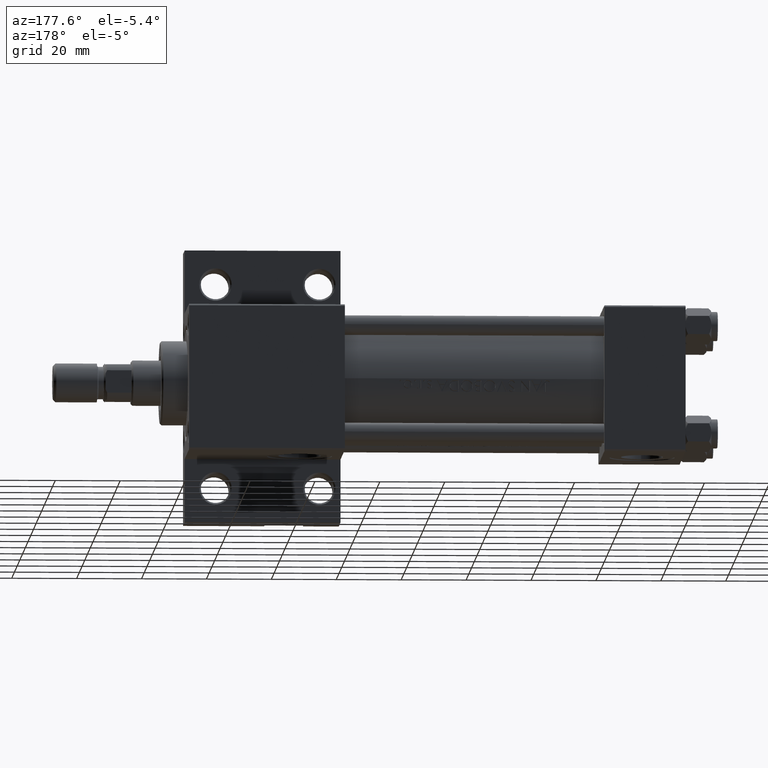
[diagram: clean part render]
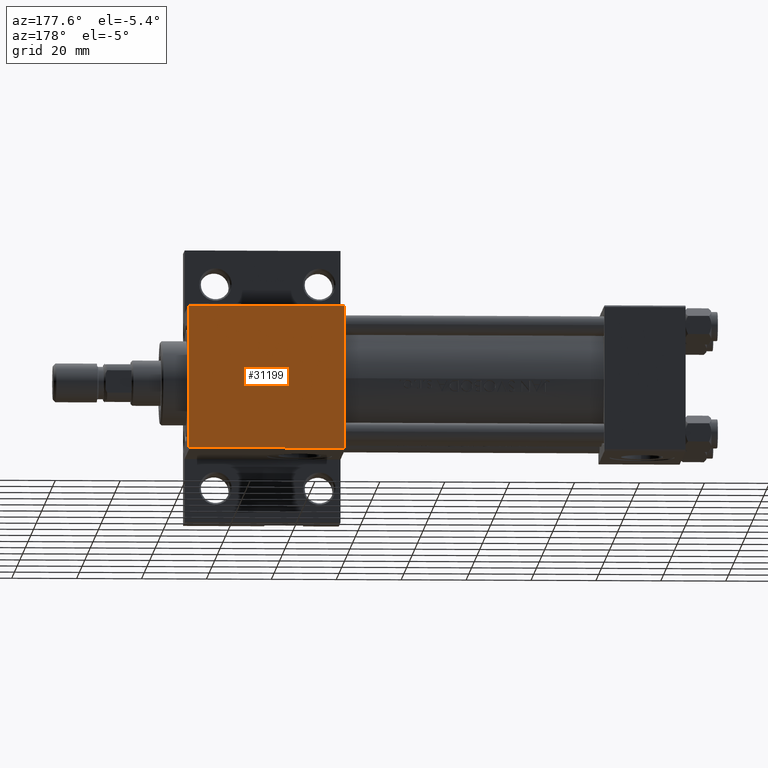
[diagram: same view with one face highlighted and labeled with its STEP entity id]
A machine part, auxiliary view. The second image highlights one B-rep face of the part: STEP entity #31199.
In plain terms, the highlighted planar face has unit normal (0, -1, -0).
Its self-contained STEP definition (entity closure, byte-faithful):
#1088 = ORIENTED_EDGE ( 'NONE', *, *, #18033, .T. ) ;
#1684 = DIRECTION ( 'NONE',  ( 0.000000000000000000, 2.312964634635742957E-16, -1.000000000000000000 ) ) ;
#1818 = CARTESIAN_POINT ( 'NONE',  ( 105.0000000000000142, 22.50000000000000355, 22.50000000000000355 ) ) ;
#5095 = PLANE ( 'NONE',  #17338 ) ;
#5229 = LINE ( 'NONE', #1818, #44245 ) ;
#6886 = VERTEX_POINT ( 'NONE', #29390 ) ;
#8455 = DIRECTION ( 'NONE',  ( 1.000000000000000000, 0.000000000000000000, 0.000000000000000000 ) ) ;
#8546 = LINE ( 'NONE', #15605, #22013 ) ;
#9372 = EDGE_CURVE ( 'NONE', #22544, #37669, #18896, .T. ) ;
#12164 = ORIENTED_EDGE ( 'NONE', *, *, #9372, .T. ) ;
#15605 = CARTESIAN_POINT ( 'NONE',  ( 153.0000000000000284, 22.50000000000000355, 22.50000000000000355 ) ) ;
#16520 = DIRECTION ( 'NONE',  ( 0.000000000000000000, 1.000000000000000000, 2.312964634635742957E-16 ) ) ;
#16658 = DIRECTION ( 'NONE',  ( 0.000000000000000000, -1.000000000000000000, -2.312964634635742957E-16 ) ) ;
#17338 = AXIS2_PLACEMENT_3D ( 'NONE', #20189, #1684, #16520 ) ;
#18033 = EDGE_CURVE ( 'NONE', #37669, #36457, #5229, .T. ) ;
#18896 = LINE ( 'NONE', #22793, #44636 ) ;
#19176 = CARTESIAN_POINT ( 'NONE',  ( 153.0000000000000284, -21.99999999999996803, 22.49999999999999289 ) ) ;
#19500 = DIRECTION ( 'NONE',  ( 0.000000000000000000, -1.000000000000000000, -2.312964634635742957E-16 ) ) ;
#20189 = CARTESIAN_POINT ( 'NONE',  ( 153.0000000000000284, 22.50000000000000355, 22.50000000000000355 ) ) ;
#22013 = VECTOR ( 'NONE', #19500, 1000.000000000000000 ) ;
#22544 = VERTEX_POINT ( 'NONE', #33491 ) ;
#22793 = CARTESIAN_POINT ( 'NONE',  ( 105.0000000000000142, 22.00000000000000355, 22.50000000000000355 ) ) ;
#25976 = DIRECTION ( 'NONE',  ( -1.000000000000000000, 0.000000000000000000, 0.000000000000000000 ) ) ;
#26382 = ORIENTED_EDGE ( 'NONE', *, *, #34797, .F. ) ;
#27268 = FACE_OUTER_BOUND ( 'NONE', #47244, .T. ) ;
#29390 = CARTESIAN_POINT ( 'NONE',  ( 153.0000000000000284, -21.99999999999995381, 22.49999999999999289 ) ) ;
#31199 = ADVANCED_FACE ( 'NONE', ( #27268 ), #5095, .F. ) ;
#33099 = ORIENTED_EDGE ( 'NONE', *, *, #44092, .T. ) ;
#33491 = CARTESIAN_POINT ( 'NONE',  ( 153.0000000000000284, 22.00000000000000355, 22.50000000000000355 ) ) ;
#34797 = EDGE_CURVE ( 'NONE', #22544, #6886, #8546, .T. ) ;
#36133 = CARTESIAN_POINT ( 'NONE',  ( 105.0000000000000142, -21.99999999999995381, 22.49999999999999289 ) ) ;
#36457 = VERTEX_POINT ( 'NONE', #36133 ) ;
#37669 = VERTEX_POINT ( 'NONE', #39665 ) ;
#39665 = CARTESIAN_POINT ( 'NONE',  ( 105.0000000000000142, 22.00000000000000355, 22.50000000000000355 ) ) ;
#44092 = EDGE_CURVE ( 'NONE', #36457, #6886, #45495, .T. ) ;
#44245 = VECTOR ( 'NONE', #16658, 1000.000000000000000 ) ;
#44636 = VECTOR ( 'NONE', #25976, 1000.000000000000000 ) ;
#44868 = VECTOR ( 'NONE', #8455, 1000.000000000000000 ) ;
#45495 = LINE ( 'NONE', #19176, #44868 ) ;
#47244 = EDGE_LOOP ( 'NONE', ( #26382, #12164, #1088, #33099 ) ) ;